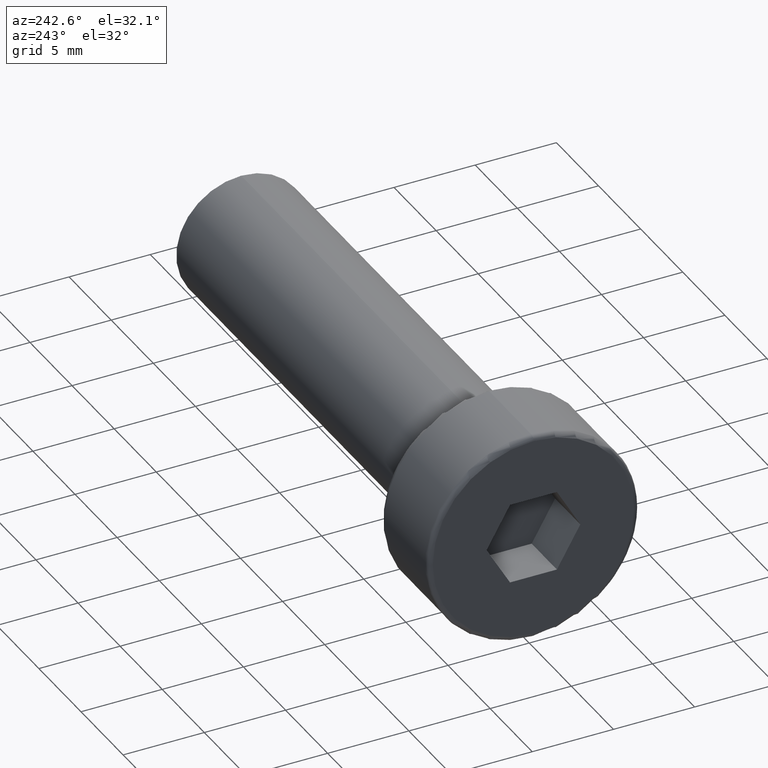
[diagram: clean part render]
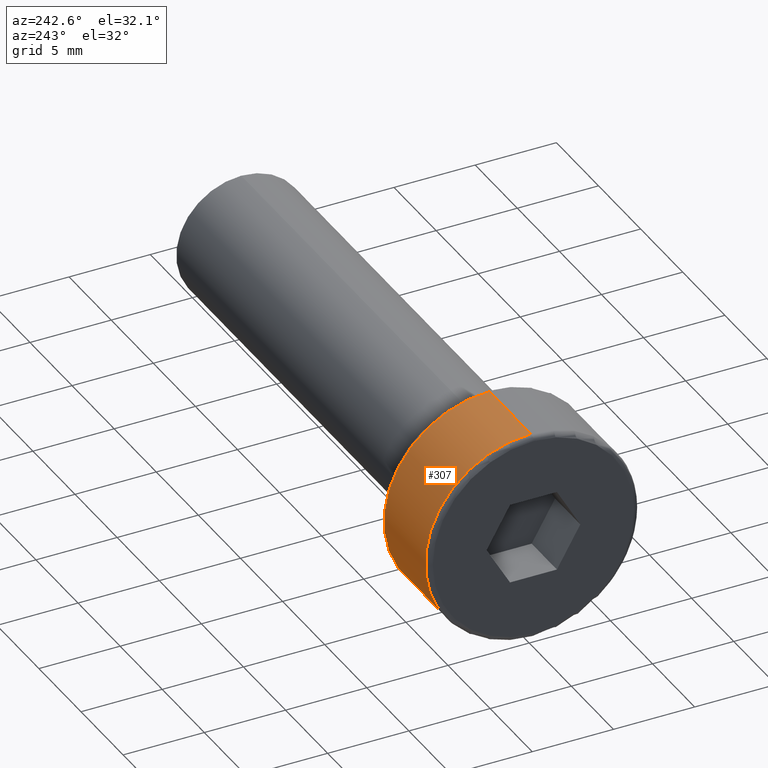
[diagram: same view with one face highlighted and labeled with its STEP entity id]
A machine part, auxiliary view. The second image highlights one B-rep face of the part: STEP entity #307.
In plain terms, the highlighted cylindrical surface (partial cylindrical patch) has radius 6.5 mm, axis along (1, 0, 0).
Its self-contained STEP definition (entity closure, byte-faithful):
#7 = CYLINDRICAL_SURFACE ( 'NONE', #794, 6.499999999999999100 ) ;
#31 = EDGE_CURVE ( 'NONE', #40, #711, #399, .T. ) ;
#34 = CIRCLE ( 'NONE', #432, 6.499999999999999100 ) ;
#40 = VERTEX_POINT ( 'NONE', #231 ) ;
#98 = ORIENTED_EDGE ( 'NONE', *, *, #31, .T. ) ;
#108 = DIRECTION ( 'NONE',  ( 0.0000000000000000000, 0.0000000000000000000, -1.000000000000000000 ) ) ;
#111 = DIRECTION ( 'NONE',  ( 1.000000000000000000, 0.0000000000000000000, 0.0000000000000000000 ) ) ;
#137 = CARTESIAN_POINT ( 'NONE',  ( -5.500000000000000000, 0.0000000000000000000, 0.0000000000000000000 ) ) ;
#151 = CARTESIAN_POINT ( 'NONE',  ( -0.2999999999999999300, 7.960204194457794500E-016, 6.499999999999999100 ) ) ;
#166 = VECTOR ( 'NONE', #111, 1000.000000000000000 ) ;
#167 = DIRECTION ( 'NONE',  ( 1.000000000000000000, 0.0000000000000000000, 0.0000000000000000000 ) ) ;
#197 = CIRCLE ( 'NONE', #347, 6.499999999999999100 ) ;
#231 = CARTESIAN_POINT ( 'NONE',  ( -5.200000000000000200, 7.960204194457794500E-016, 6.499999999999999100 ) ) ;
#256 = VERTEX_POINT ( 'NONE', #797 ) ;
#267 = CARTESIAN_POINT ( 'NONE',  ( -5.200000000000000200, 0.0000000000000000000, 0.0000000000000000000 ) ) ;
#306 = LINE ( 'NONE', #721, #166 ) ;
#307 = ADVANCED_FACE ( 'NONE', ( #532 ), #7, .T. ) ;
#343 = CARTESIAN_POINT ( 'NONE',  ( -5.500000000000000000, 7.960204194457794500E-016, 6.499999999999999100 ) ) ;
#347 = AXIS2_PLACEMENT_3D ( 'NONE', #519, #621, #703 ) ;
#359 = DIRECTION ( 'NONE',  ( 1.000000000000000000, 0.0000000000000000000, 0.0000000000000000000 ) ) ;
#391 = EDGE_CURVE ( 'NONE', #709, #256, #306, .T. ) ;
#399 = LINE ( 'NONE', #343, #635 ) ;
#432 = AXIS2_PLACEMENT_3D ( 'NONE', #267, #522, #516 ) ;
#464 = ORIENTED_EDGE ( 'NONE', *, *, #759, .T. ) ;
#481 = EDGE_LOOP ( 'NONE', ( #464, #98, #693, #612 ) ) ;
#516 = DIRECTION ( 'NONE',  ( 0.0000000000000000000, 0.0000000000000000000, -1.000000000000000000 ) ) ;
#519 = CARTESIAN_POINT ( 'NONE',  ( -0.2999999999999999300, 0.0000000000000000000, 0.0000000000000000000 ) ) ;
#522 = DIRECTION ( 'NONE',  ( 1.000000000000000000, 0.0000000000000000000, 0.0000000000000000000 ) ) ;
#532 = FACE_OUTER_BOUND ( 'NONE', #481, .T. ) ;
#612 = ORIENTED_EDGE ( 'NONE', *, *, #391, .F. ) ;
#621 = DIRECTION ( 'NONE',  ( -1.000000000000000000, -0.0000000000000000000, -0.0000000000000000000 ) ) ;
#635 = VECTOR ( 'NONE', #167, 1000.000000000000000 ) ;
#681 = CARTESIAN_POINT ( 'NONE',  ( -5.200000000000000200, 0.0000000000000000000, -6.499999999999999100 ) ) ;
#693 = ORIENTED_EDGE ( 'NONE', *, *, #729, .T. ) ;
#703 = DIRECTION ( 'NONE',  ( 0.0000000000000000000, 0.0000000000000000000, -1.000000000000000000 ) ) ;
#709 = VERTEX_POINT ( 'NONE', #681 ) ;
#711 = VERTEX_POINT ( 'NONE', #151 ) ;
#721 = CARTESIAN_POINT ( 'NONE',  ( -5.500000000000000000, 0.0000000000000000000, -6.499999999999999100 ) ) ;
#729 = EDGE_CURVE ( 'NONE', #711, #256, #197, .T. ) ;
#759 = EDGE_CURVE ( 'NONE', #709, #40, #34, .T. ) ;
#794 = AXIS2_PLACEMENT_3D ( 'NONE', #137, #359, #108 ) ;
#797 = CARTESIAN_POINT ( 'NONE',  ( -0.2999999999999999300, 0.0000000000000000000, -6.499999999999999100 ) ) ;